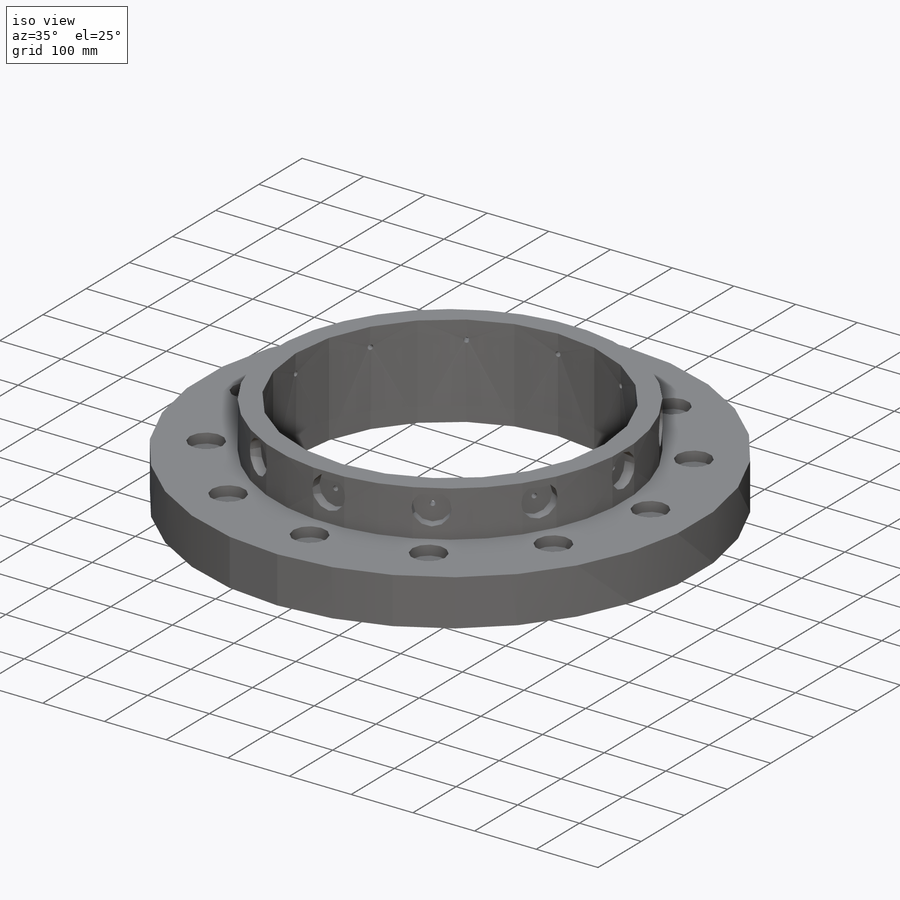
[diagram: iso view]
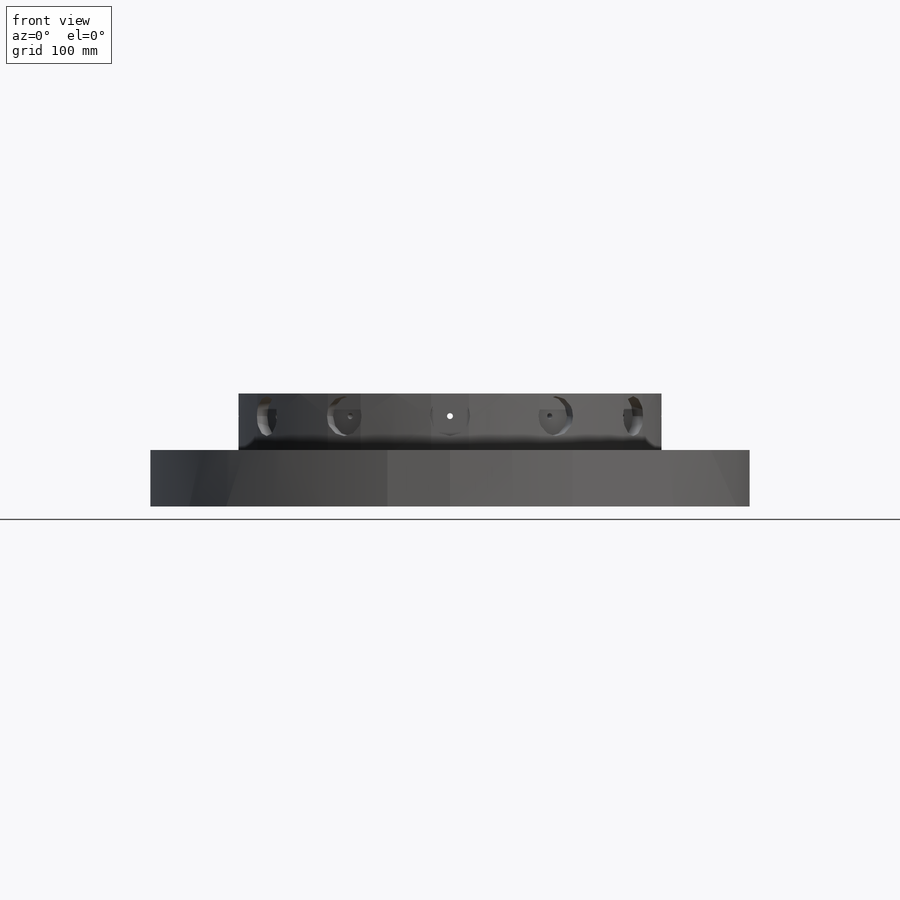
[diagram: front view]
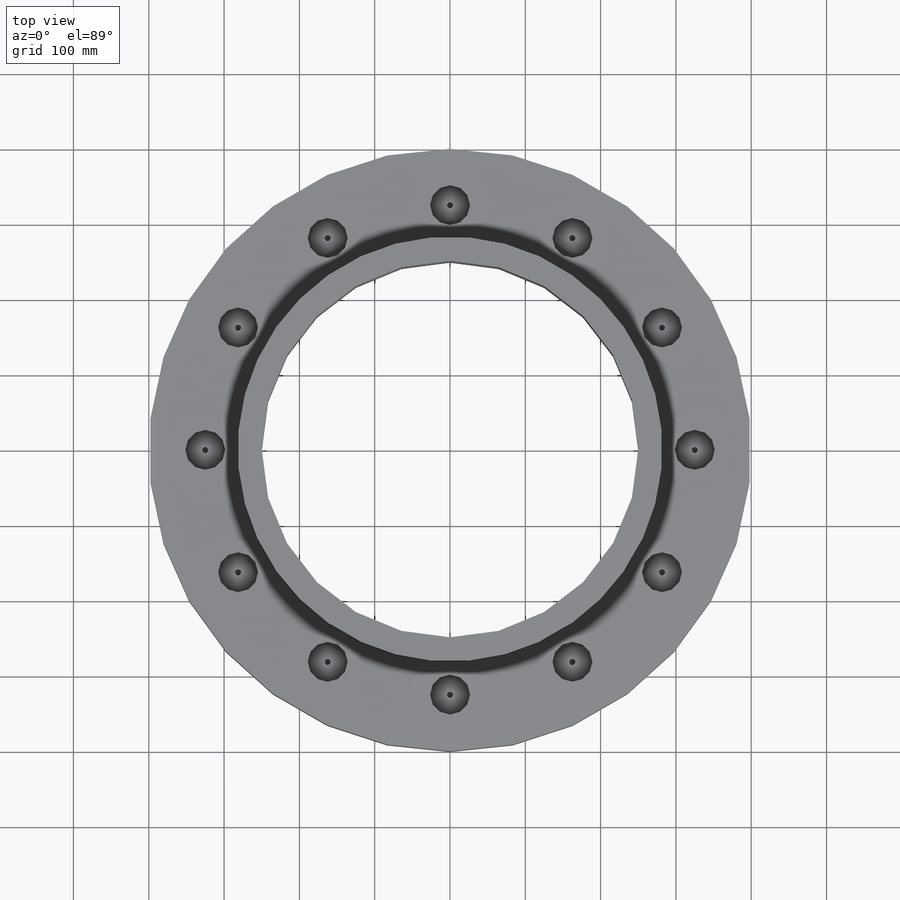
[diagram: top view]
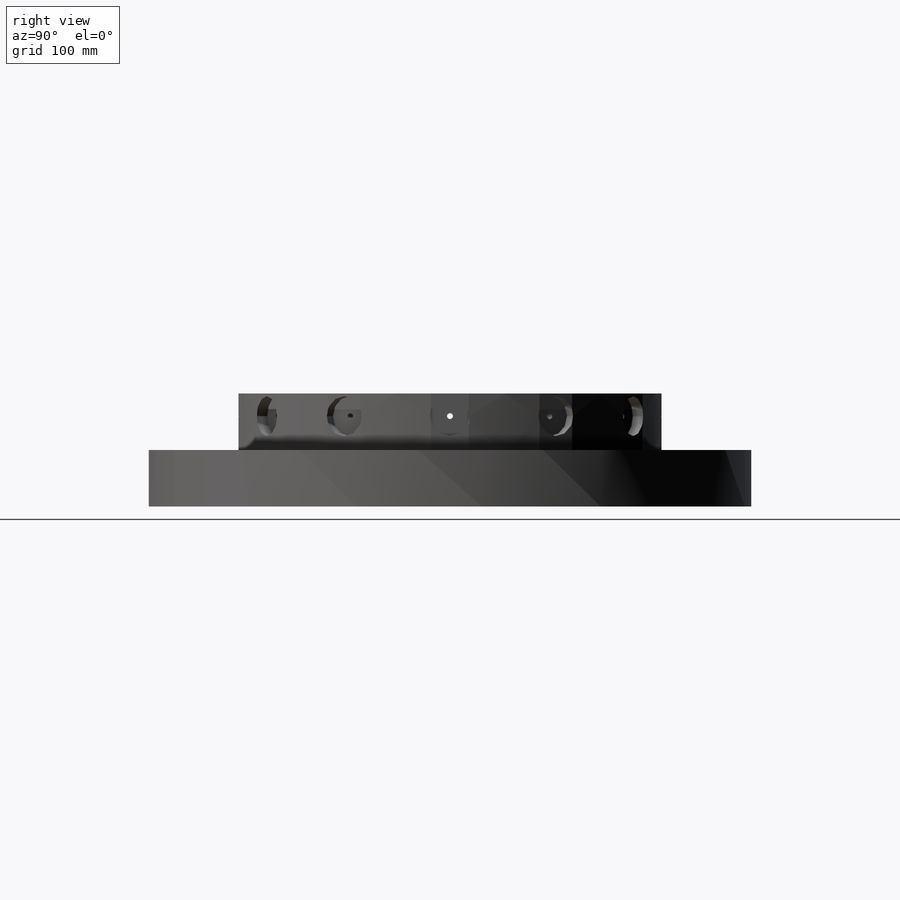
[diagram: right view]
SOLIDWORKS PART (.sldprt)
format: sldprt  version: not decoded by parser v0  size: 294,912 bytes
history: native  units: mm
features: sketch x7, cut_extrude x4, material x1, extrude x1, hole x1, pattern_circular x1 (+11 scaffold rows collapsed)
feature tree (26):
  scaffold x11  (default folders/planes/origin — collapsed)
  material  "Material <not specified>"
  sketch  "Sketch1"  dims[D1=800.0mm D2=500.0mm]
  extrude  "Boss-Extrude1"  Depth=150mm
  sketch  "Sketch2"  dims[D1=564.0mm]
  cut_extrude  "Cut-Extrude1"  Depth=75mm
  sketch  "Sketch3"  dims[D2=53.0mm D3=325.0mm D1=50.0mm]
  cut_extrude  "Cut-Extrude2"  Depth=16mm
  sketch  "Sketch6"  dims[c1.D1=5.0mm c1.D2=45.0mm c2.D1=50.0mm]
  cut_extrude  "Cut-Extrude3"  [1 undecoded]
  sketch  "Sketch7"  dims[D2=53.0mm D1=30.0mm]
  cut_extrude  "Cut-Extrude4"  Depth=16mm
  hole  "5/16-18 Tapped Hole1"  Diameter=6.5278mm Depth=23.11mm
  sketch  "3DSketch1"
  sketch  "Sketch4"  dims[hole-wizard template sketch: 28 standard entries collapsed; hole parameters kept: c8.Tap Drill Dia.=6.5278mm c8.Tap Drill Depth=23.11mm c8.Thread Major Dia.=7.9375mm c8.Thread Depth=16.0mm c8.D5=~14.816244mm c8.Drill Angle=118.0deg]
  pattern_circular  "CirPattern1"  Count=12 Angle=360deg
decode coverage: 12 of 14 modeling features carry decoded parameters
note: ~ marks probable driven/reference dimensions
note: 1 parameter value undecoded
note: suppression state not decoded; provenance and decode notes live in map.json
